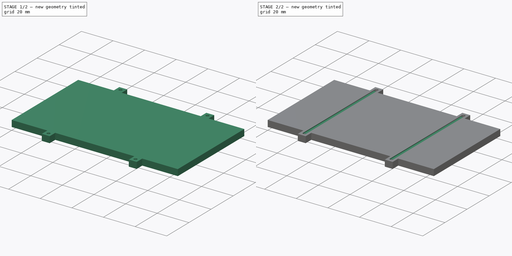
[diagram: build sequence overview — one tinted view per stage of 2, left to right]
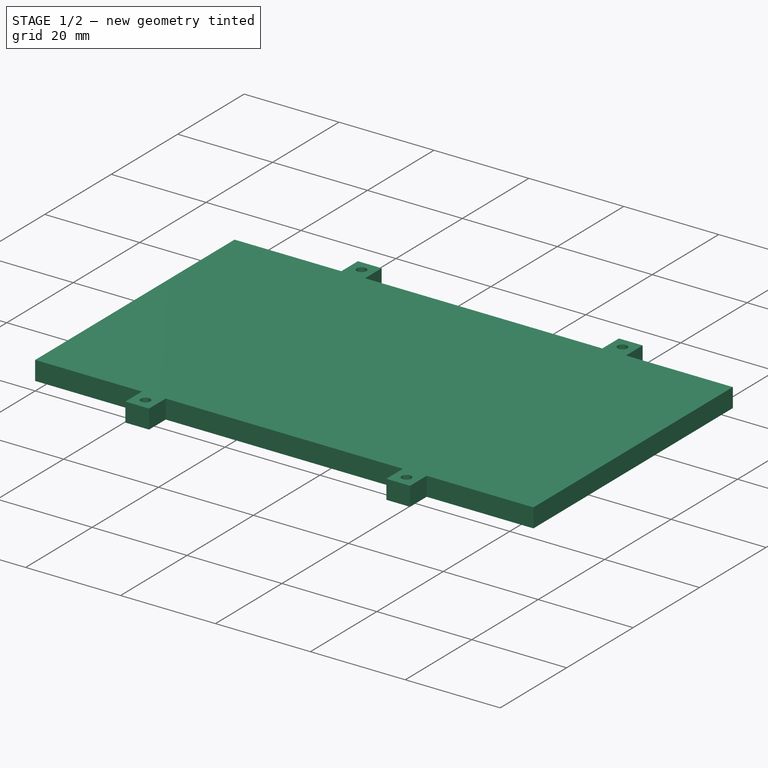
[diagram: stage 1 of 2 — iso view after this stage's code; geometry added in this stage tinted green]
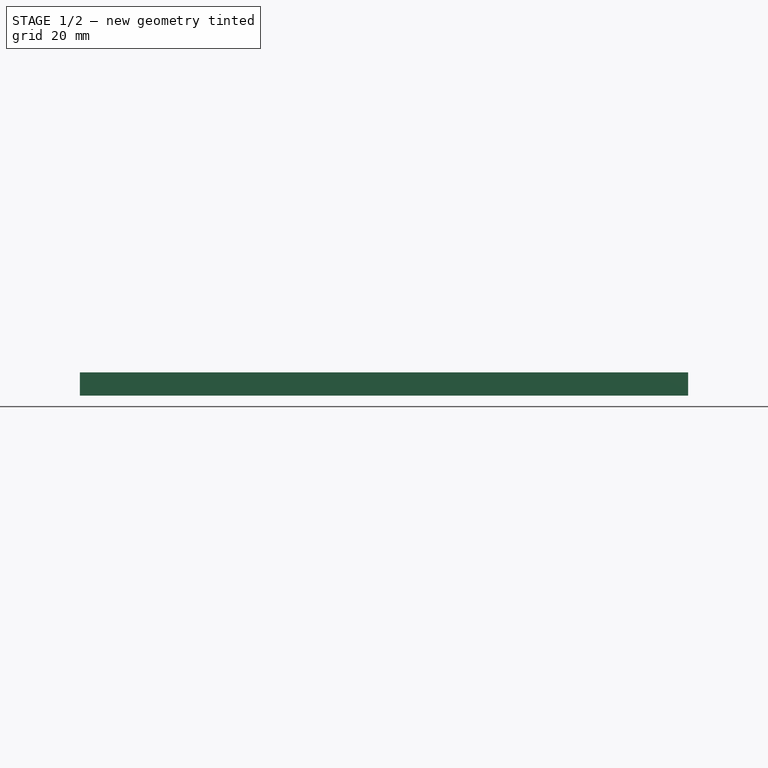
[diagram: stage 1 of 2 — front view after this stage's code; geometry added in this stage tinted green]
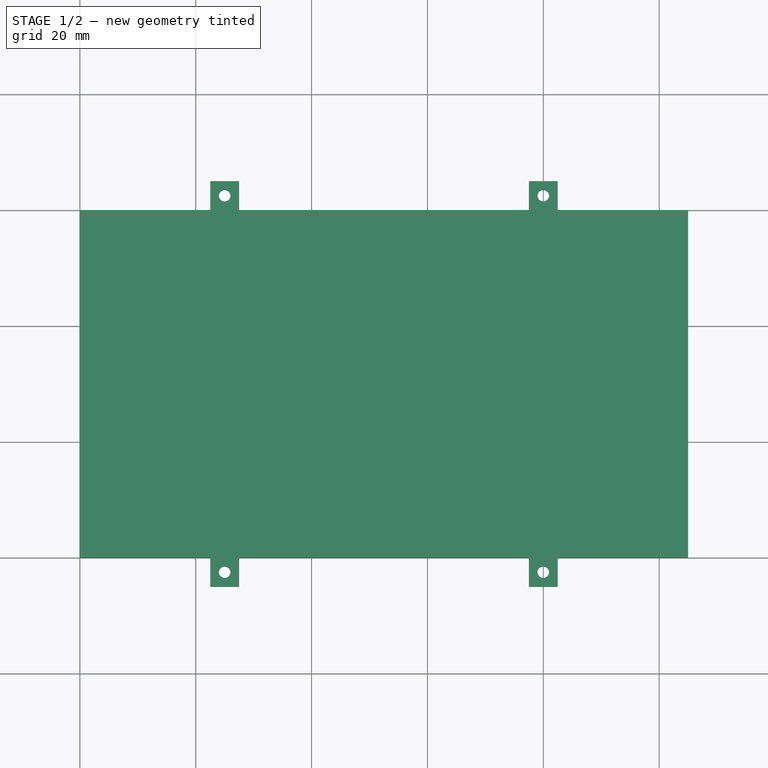
[diagram: stage 1 of 2 — top view after this stage's code; geometry added in this stage tinted green]
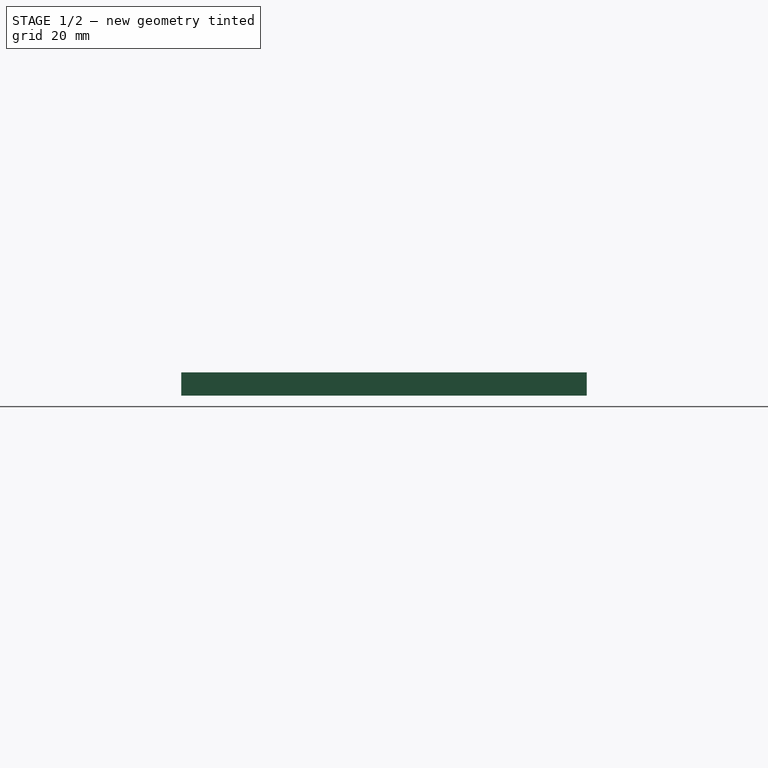
[diagram: stage 1 of 2 — right view after this stage's code; geometry added in this stage tinted green]
FCSTD DOCUMENT  (FreeCAD 0.18R16093 (Git))
Label: base
License: All rights reserved
LicenseURL: http://en.wikipedia.org/wiki/All_rights_reserved
objects: Sketcher::SketchObject×3, PartDesign::Pocket×2, PartDesign::Pad×1, PartDesign::Body×1
note: 10 computed .brp shape members not serialized (recipe doc carries the construction recipe); baked Part::Feature solids carry a one-line shape summary decoded from their .brp

FEATURE [Sketcher::SketchObject] Sketch
  MapMode = 5
  Support = -> [XY_Plane]
  sketch-geometry (40):
    g0: LineSegment StartX=105 StartY=0 StartZ=0 EndX=105 EndY=60 EndZ=0
    g1: LineSegment StartX=0 StartY=60 StartZ=0 EndX=0 EndY=0 EndZ=0
    g2: LineSegment StartX=0 StartY=0 StartZ=0 EndX=22.5 EndY=0 EndZ=0
    g3: LineSegment StartX=22.5 StartY=0 StartZ=0 EndX=22.5 EndY=-5 EndZ=0
    g4: LineSegment StartX=22.5 StartY=-5 StartZ=0 EndX=27.5 EndY=-5 EndZ=0
    g5: LineSegment StartX=27.5 StartY=-5 StartZ=0 EndX=27.5 EndY=0 EndZ=0
    g6: LineSegment StartX=27.5 StartY=0 StartZ=0 EndX=77.5 EndY=0 EndZ=0
    g7: LineSegment StartX=77.5 StartY=0 StartZ=0 EndX=77.5 EndY=-5 EndZ=0
    g8: LineSegment StartX=77.5 StartY=-5 StartZ=0 EndX=82.5 EndY=-5 EndZ=0
    g9: LineSegment StartX=82.5 StartY=-5 StartZ=0 EndX=82.5 EndY=0 EndZ=0
    g10: LineSegment StartX=82.5 StartY=0 StartZ=0 EndX=105 EndY=0 EndZ=0
    g11: LineSegment StartX=0 StartY=60 StartZ=0 EndX=22.5 EndY=60 EndZ=0
    g12: LineSegment StartX=22.5 StartY=60 StartZ=0 EndX=22.5 EndY=65 EndZ=0
    g13: LineSegment StartX=22.5 StartY=65 StartZ=0 EndX=27.5 EndY=65 EndZ=0
    g14: LineSegment StartX=27.5 StartY=65 StartZ=0 EndX=27.5 EndY=60 EndZ=0
    g15: LineSegment StartX=27.5 StartY=60 StartZ=0 EndX=77.5 EndY=60 EndZ=0
    g16: LineSegment StartX=77.5 StartY=60 StartZ=0 EndX=77.5 EndY=65 EndZ=0
    g17: LineSegment StartX=77.5 StartY=65 StartZ=0 EndX=82.5 EndY=65 EndZ=0
    g18: LineSegment StartX=82.5 StartY=65 StartZ=0 EndX=82.5 EndY=60 EndZ=0
    g19: LineSegment StartX=82.5 StartY=60 StartZ=0 EndX=105 EndY=60 EndZ=0
    g20: LineSegment [constr] StartX=22.5 StartY=60 StartZ=0 EndX=25 EndY=60 EndZ=0
    g21: LineSegment [constr] StartX=25 StartY=60 StartZ=0 EndX=27.5 EndY=60 EndZ=0
    g22: LineSegment [constr] StartX=77.5 StartY=60 StartZ=0 EndX=80 EndY=60 EndZ=0
    g23: LineSegment [constr] StartX=80 StartY=60 StartZ=0 EndX=82.5 EndY=60 EndZ=0
    g24: LineSegment [constr] StartX=22.5 StartY=0 StartZ=0 EndX=25 EndY=0 EndZ=0
    g25: LineSegment [constr] StartX=25 StartY=0 StartZ=0 EndX=27.5 EndY=0 EndZ=0
    g26: LineSegment [constr] StartX=77.5 StartY=0 StartZ=0 EndX=80 EndY=0 EndZ=0
    g27: LineSegment [constr] StartX=80 StartY=0 StartZ=0 EndX=82.5 EndY=0 EndZ=0
    g28: LineSegment [constr] StartX=25 StartY=60 StartZ=0 EndX=25 EndY=62.5 EndZ=0
    g29: LineSegment [constr] StartX=25 StartY=62.5 StartZ=0 EndX=25 EndY=65 EndZ=0
    g30: LineSegment [constr] StartX=80 StartY=60 StartZ=0 EndX=80 EndY=62.5 EndZ=0
    g31: LineSegment [constr] StartX=80 StartY=62.5 StartZ=0 EndX=80 EndY=65 EndZ=0
    g32: LineSegment [constr] StartX=80 StartY=0 StartZ=0 EndX=80 EndY=-2.5 EndZ=0
    g33: LineSegment [constr] StartX=80 StartY=-2.5 StartZ=0 EndX=80 EndY=-5 EndZ=0
    g34: LineSegment [constr] StartX=25 StartY=0 StartZ=0 EndX=25 EndY=-2.5 EndZ=0
    g35: LineSegment [constr] StartX=25 StartY=-2.5 StartZ=0 EndX=25 EndY=-5 EndZ=0
    g36: Circle CenterX=25 CenterY=62.5 CenterZ=0 NormalX=0 NormalY=0 NormalZ=1 AngleXU=0 Radius=1
    g37: Circle CenterX=80 CenterY=62.5 CenterZ=0 NormalX=0 NormalY=0 NormalZ=1 AngleXU=0 Radius=1
    g38: Circle CenterX=80 CenterY=-2.5 CenterZ=0 NormalX=0 NormalY=0 NormalZ=1 AngleXU=0 Radius=1
    g39: Circle CenterX=25 CenterY=-2.5 CenterZ=0 NormalX=0 NormalY=0 NormalZ=1 AngleXU=0 Radius=1
  constraints (111):
    c: Vertical(g0)
    c: Vertical(g1)
    c: Coincident(g1,g2)
    c: PointOnObject(g2,g-1)
    c: Coincident(g2,g3)
    c: Vertical(g3)
    c: Coincident(g3,g4)
    c: Horizontal(g4)
    c: Coincident(g4,g5)
    c: PointOnObject(g5,g-1)
    c: Vertical(g5)
    c: Coincident(g5,g6)
    c: PointOnObject(g6,g-1)
    c: Coincident(g6,g7)
    c: Vertical(g7)
    c: Coincident(g7,g8)
    c: Horizontal(g8)
    c: Coincident(g8,g9)
    c: PointOnObject(g9,g-1)
    c: Vertical(g9)
    c: Coincident(g9,g10)
    c: Coincident(g10,g0)
    c: Horizontal(g10)
    c: Coincident(g1,g11)
    c: Horizontal(g11)
    c: Coincident(g11,g12)
    c: Vertical(g12)
    c: Coincident(g12,g13)
    c: Horizontal(g13)
    c: Coincident(g13,g14)
    c: Vertical(g14)
    c: Coincident(g14,g15)
    c: Horizontal(g15)
    c: Coincident(g15,g16)
    c: Vertical(g16)
    c: Coincident(g16,g17)
    c: Horizontal(g17)
    c: Coincident(g17,g18)
    c: Vertical(g18)
    c: Coincident(g18,g19)
    c: Coincident(g19,g0)
    c: Horizontal(g19)
    c: Equal(g16,g12)
    c: Equal(g12,g3)
    c: Equal(g3,g7)
    c: Equal(g4,g8)
    c: Equal(g8,g17)
    c: Equal(g17,g13)
    c: Equal(g15,g6)
    c: Equal(g10,g2)
    c: Equal(g19,g11)
    c: Coincident(g11,g20)
    c: Horizontal(g20)
    c: Coincident(g20,g21)
    c: Coincident(g21,g14)
    c: Horizontal(g21)
    c: Coincident(g15,g22)
    c: Horizontal(g22)
    c: Coincident(g22,g23)
    c: Coincident(g23,g18)
    c: Horizontal(g23)
    c: Coincident(g2,g24)
    c: Horizontal(g24)
    c: Coincident(g24,g25)
    c: Coincident(g25,g5)
    c: Coincident(g6,g26)
    c: PointOnObject(g26,g-1)
    c: Coincident(g26,g27)
    c: Coincident(g27,g9)
    c: Equal(g22,g23)
    c: Equal(g20,g21)
    c: Equal(g24,g25)
    c: Equal(g26,g27)
    c: Coincident(g20,g28)
    c: Vertical(g28)
    c: Coincident(g28,g29)
    c: PointOnObject(g29,g13)
    c: Vertical(g29)
    c: Coincident(g22,g30)
    c: Vertical(g30)
    c: Coincident(g30,g31)
    c: PointOnObject(g31,g17)
    c: Vertical(g31)
    c: Coincident(g26,g32)
    c: Vertical(g32)
    c: Coincident(g32,g33)
    c: PointOnObject(g33,g8)
    c: Vertical(g33)
    c: Coincident(g24,g34)
    c: Vertical(g34)
    c: Coincident(g34,g35)
    c: PointOnObject(g35,g4)
    c: Vertical(g35)
    c: Equal(g34,g35)
    c: Equal(g32,g33)
    c: Equal(g31,g30)
    c: Equal(g29,g28)
    c: Coincident(g36,g28)
    c: Coincident(g37,g30)
    c: Coincident(g38,g32)
    c: Coincident(g39,g34)
    c: Equal(g39,g38)
    c: Equal(g38,g36)
    c: Equal(g36,g37)
    c: DistanceX(g1,g0) = 105
    c: Coincident(g1,g-1)
    c: DistanceX(g17,g17) = 5
    c: DistanceY(g18,g18) = 5
    c: Radius(g37) = 1
    c: DistanceY(g0,g0) = 60
    c: DistanceX(g15,g15) = 50
FEATURE [PartDesign::Pad] Pad
  Length = 4
  Length2 = 100
  Profile = -> Sketch
  Type = 0
FEATURE [Sketcher::SketchObject] Sketch001
  MapMode = 5
  Support = -> [XY_Plane]
  expr: Constraints[11] = 60 - 4
  expr: Constraints[10] = 105 - 4
  sketch-geometry (4):
    g0: LineSegment StartX=2 StartY=58 StartZ=0 EndX=103 EndY=58 EndZ=0
    g1: LineSegment StartX=103 StartY=58 StartZ=0 EndX=103 EndY=2 EndZ=0
    g2: LineSegment StartX=103 StartY=2 StartZ=0 EndX=2 EndY=2 EndZ=0
    g3: LineSegment StartX=2 StartY=2 StartZ=0 EndX=2 EndY=58 EndZ=0
  constraints (12):
    c: Coincident(g0,g1)
    c: Coincident(g1,g2)
    c: Coincident(g2,g3)
    c: Coincident(g3,g0)
    c: Horizontal(g0)
    c: Horizontal(g2)
    c: Vertical(g1)
    c: Vertical(g3)
    c: DistanceY(g-1,g2) = 2
    c: DistanceX(g-1,g2) = 2
    c: DistanceX(g0,g0) = 101
    c: DistanceY(g3,g3) = 56
FEATURE [PartDesign::Pocket] Pocket
  BaseFeature = -> Pad
  Length = 2
  Length2 = 100
  Profile = -> Sketch001
  Reversed = true
  Type = 0
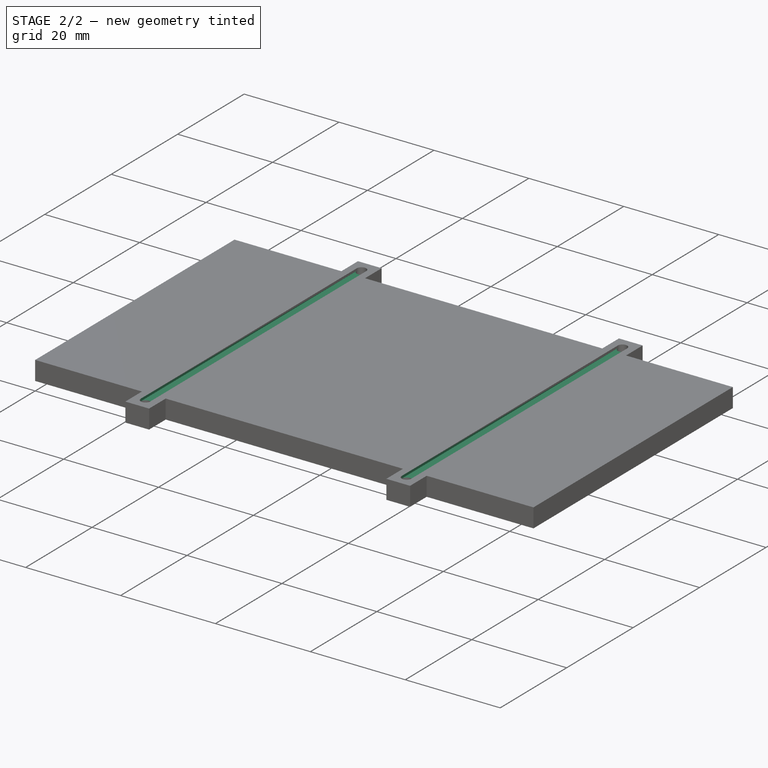
[diagram: stage 2 of 2 — iso view after this stage's code; geometry added in this stage tinted green]
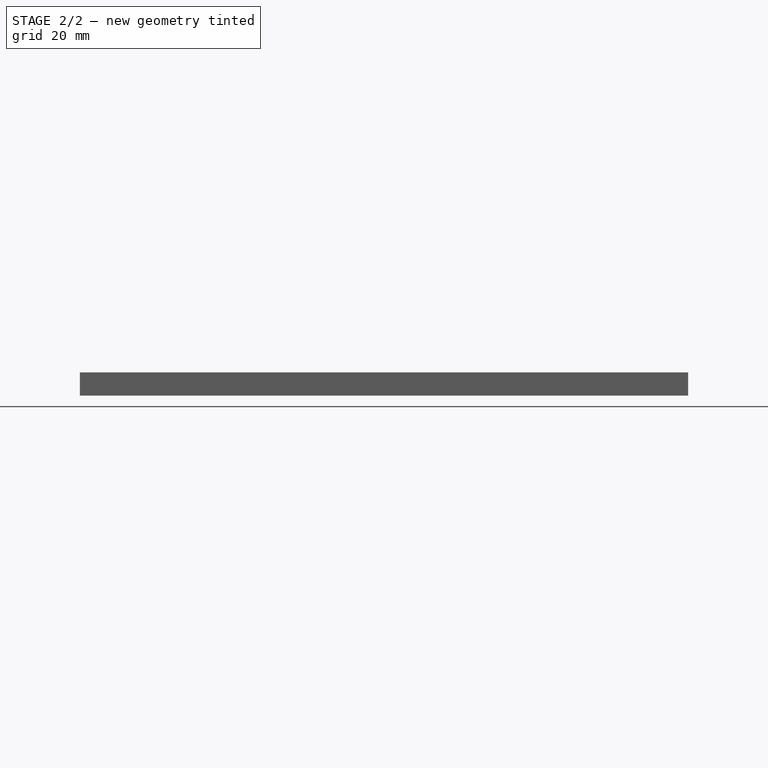
[diagram: stage 2 of 2 — front view after this stage's code; geometry added in this stage tinted green]
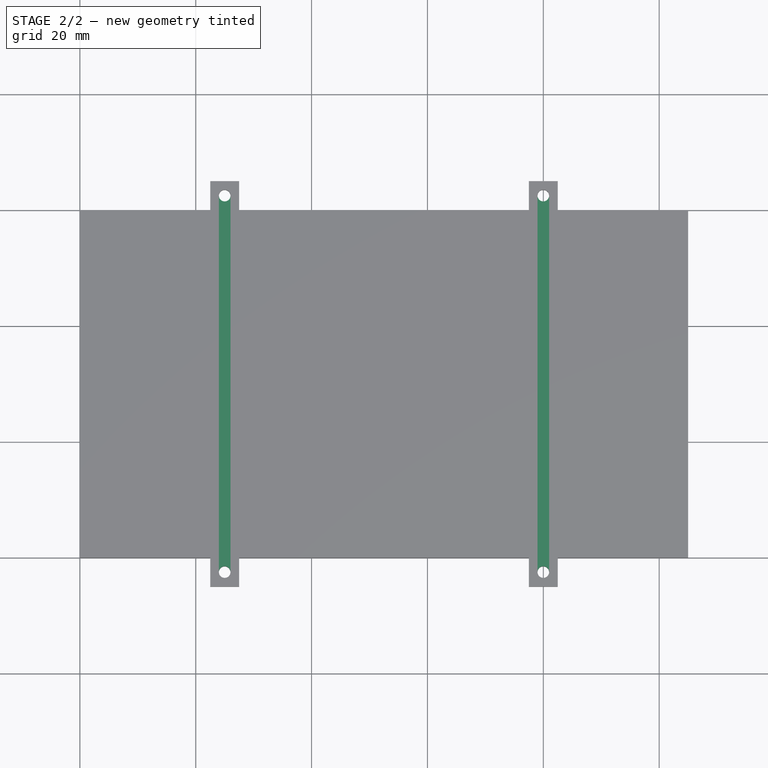
[diagram: stage 2 of 2 — top view after this stage's code; geometry added in this stage tinted green]
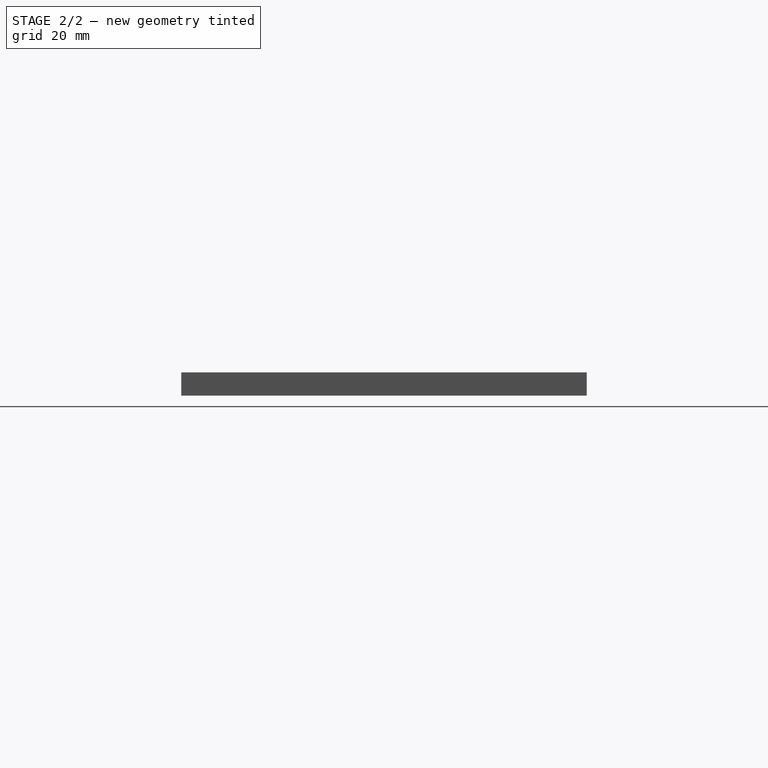
[diagram: stage 2 of 2 — right view after this stage's code; geometry added in this stage tinted green]
FEATURE [Sketcher::SketchObject] Sketch002
  MapMode = 5
  Placement = pos=(0,0,4) rot=(0,0,1;0rad)
  Support = -> [Pocket]
  expr: Constraints[21] = 5 / 2
  sketch-geometry (9):
    g0: LineSegment StartX=24 StartY=62.5 StartZ=0 EndX=26 EndY=62.5 EndZ=0
    g1: LineSegment StartX=26 StartY=62.5 StartZ=0 EndX=26 EndY=-2.5 EndZ=0
    g2: LineSegment StartX=26 StartY=-2.5 StartZ=0 EndX=24 EndY=-2.5 EndZ=0
    g3: LineSegment StartX=24 StartY=-2.5 StartZ=0 EndX=24 EndY=62.5 EndZ=0
    g4: LineSegment StartX=79 StartY=62.5 StartZ=0 EndX=81 EndY=62.5 EndZ=0
    g5: LineSegment StartX=81 StartY=62.5 StartZ=0 EndX=81 EndY=-2.5 EndZ=0
    g6: LineSegment StartX=81 StartY=-2.5 StartZ=0 EndX=79 EndY=-2.5 EndZ=0
    g7: LineSegment StartX=79 StartY=-2.5 StartZ=0 EndX=79 EndY=62.5 EndZ=0
    g8: LineSegment [constr] StartX=26 StartY=62.5 StartZ=0 EndX=79 EndY=62.5 EndZ=0
  constraints (26):
    c: Coincident(g0,g1)
    c: Coincident(g1,g2)
    c: Coincident(g2,g3)
    c: Coincident(g3,g0)
    c: Horizontal(g0)
    c: Horizontal(g2)
    c: Vertical(g1)
    c: Vertical(g3)
    c: Coincident(g4,g5)
    c: Coincident(g5,g6)
    c: Coincident(g6,g7)
    c: Coincident(g7,g4)
    c: Horizontal(g4)
    c: Horizontal(g6)
    c: Vertical(g5)
    c: Vertical(g7)
    c: Equal(g0,g4)
    c: Equal(g1,g7)
    c: Coincident(g8,g0)
    c: Coincident(g8,g4)
    c: Horizontal(g8)
    c: DistanceY(g2,g-1) = 2.5
    c: DistanceX(g0,g0) = 2
    c: DistanceX(g-1,g2) = 24
    c: DistanceY(g3,g3) = 65
    c: DistanceX(g8,g8) = 53
FEATURE [PartDesign::Pocket] Pocket001
  BaseFeature = -> Pocket
  Length = 0.5
  Length2 = 100
  Profile = -> Sketch002
  Type = 0
FEATURE [PartDesign::Body] Body
  Group = -> [Sketch,Pad,Sketch001,Pocket,Sketch002,Pocket001]
  Origin = -> Origin
  Tip = -> Pocket001
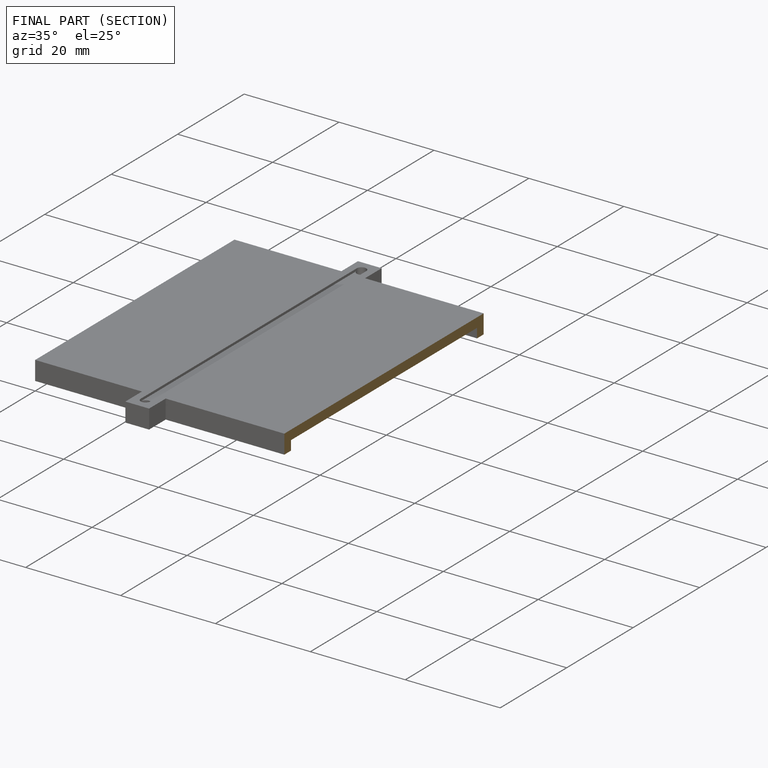
[diagram: finished part — half-section view (interior)]
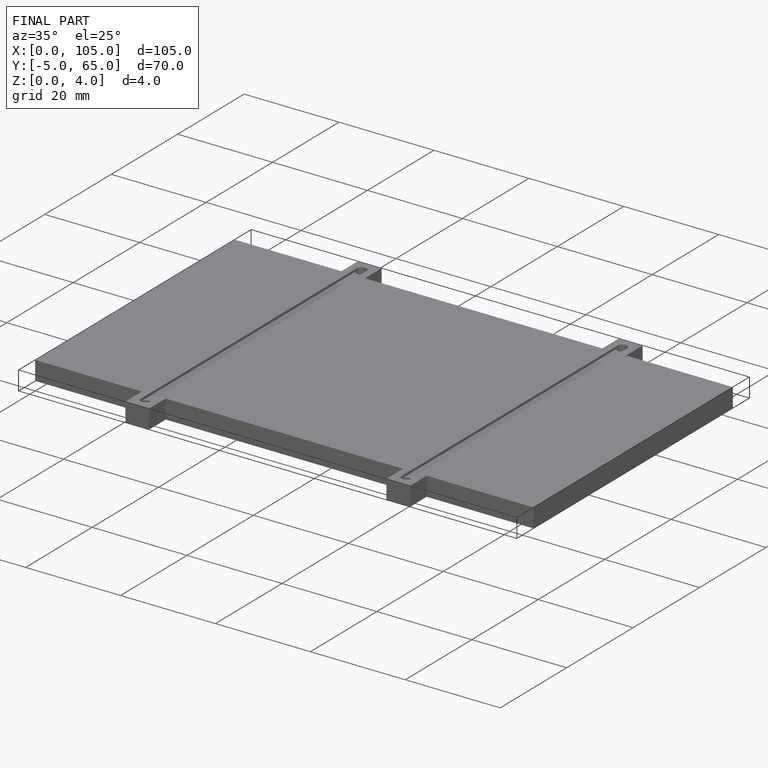
[diagram: finished part — iso view with bounding-box wireframe]
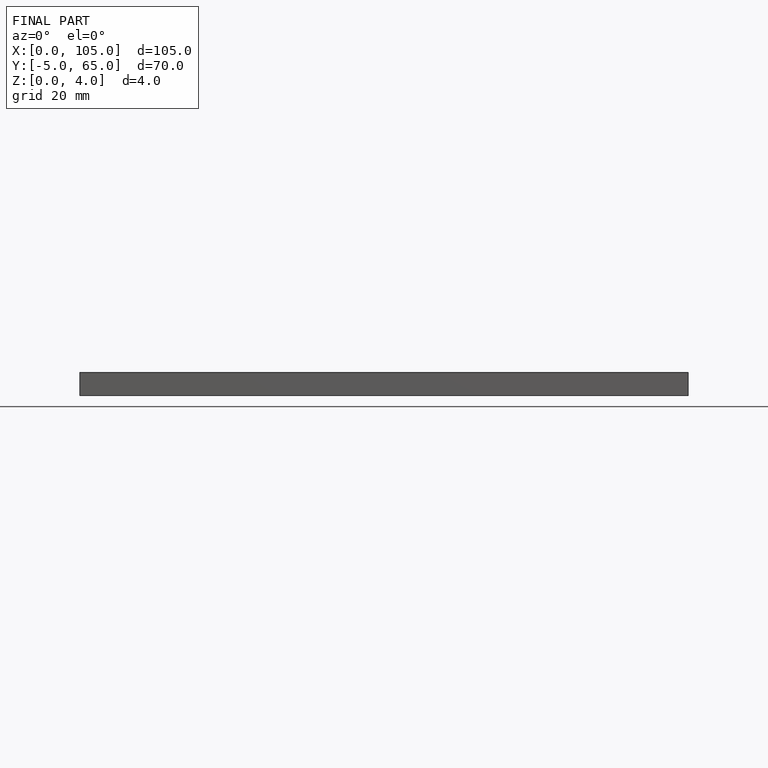
[diagram: finished part — front view with bounding-box wireframe]
